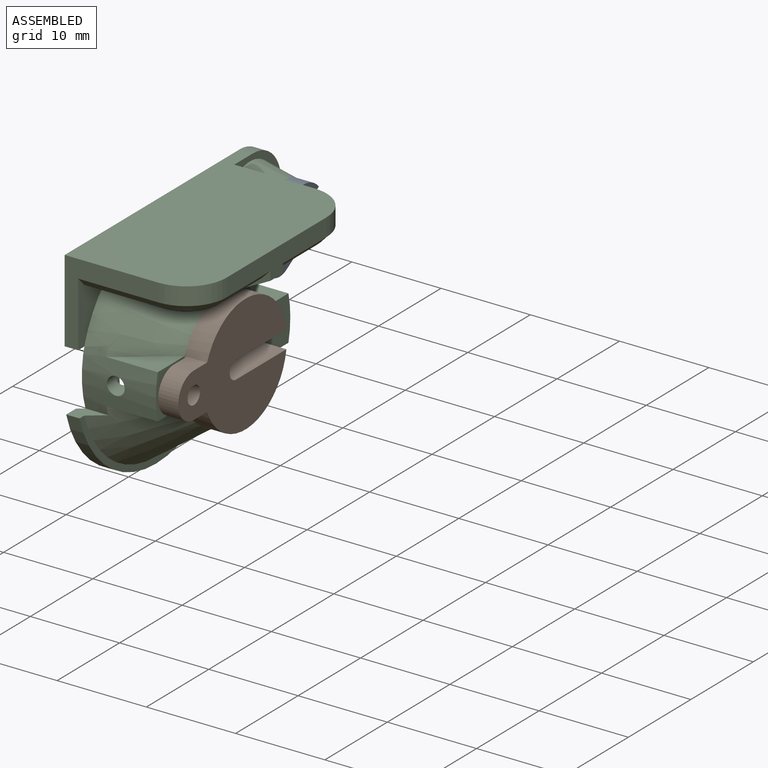
[diagram: assembled view]
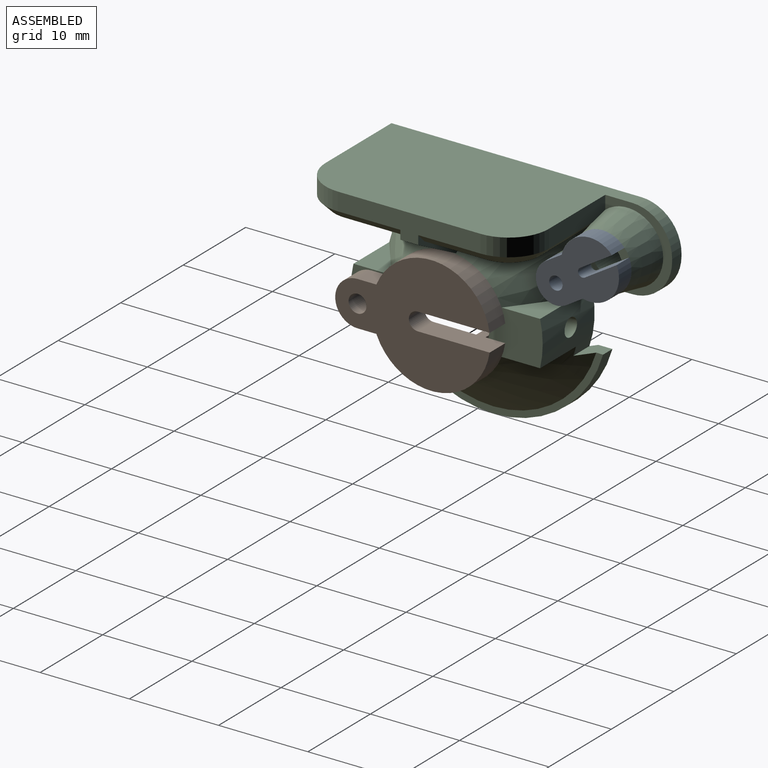
[diagram: assembled view, second angle]
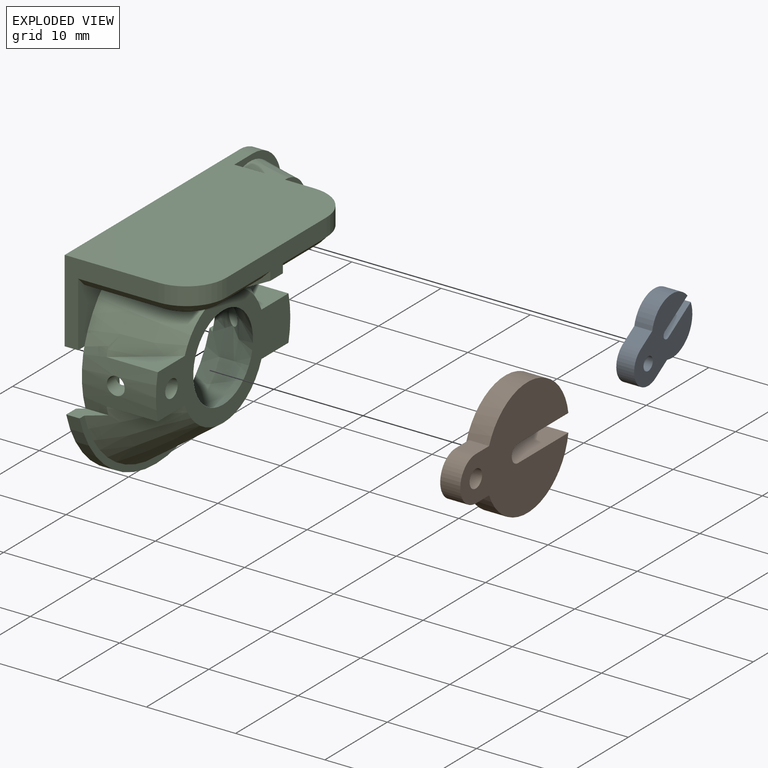
[diagram: exploded view]
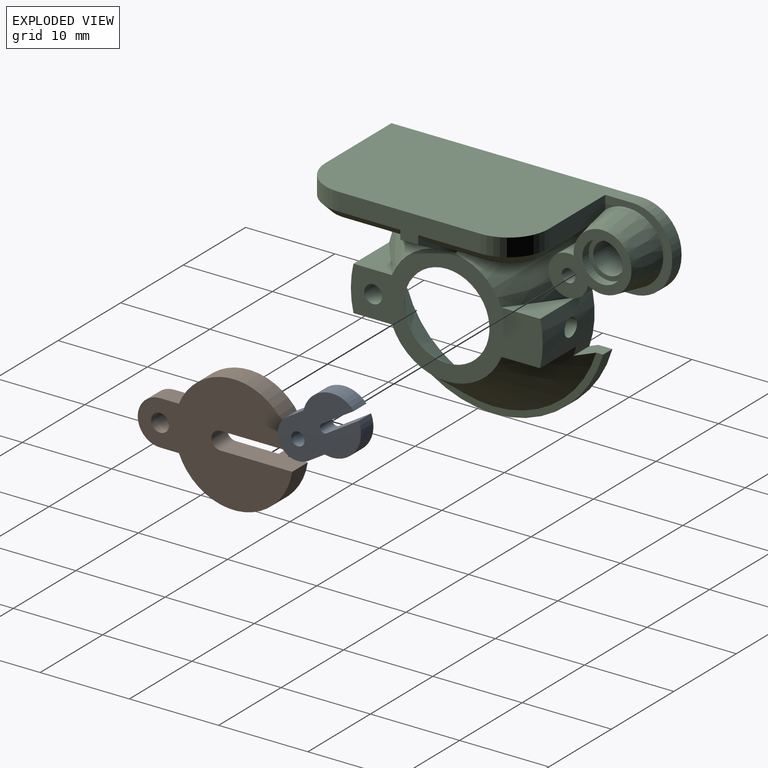
[diagram: exploded view, second angle]
ASSEMBLY  parts=3 mates=2
PART A: 11 faces, bbox 2x9.3x7.9 mm
  f0: cylinder r=2.25mm len=4.16mm, axis (-1,0,0), area 14.1mm2, adj f1,f7,f9,f10
  f1: plane 2x1.83mm, normal (0,0.53,-0.85), area 4.3mm2, adj f0,f2,f9,f10
  f2: cylinder r=3.25mm len=4.52mm, axis (-1,0,0), area 14.4mm2, adj f1,f3,f9,f10
  f3: plane 3.58x2.22mm, normal (0,-0.53,0.85), area 8.4mm2, adj f2,f4,f9,f10
  f4: cylinder r=0.5mm len=2mm, axis (-1,0,0), area 3.1mm2, adj f3,f5,f9,f10
  f5: plane 3.58x2.22mm, normal (0,0.53,-0.85), area 8.4mm2, adj f4,f6,f9,f10
  f6: cylinder r=3.25mm len=5.64mm, axis (-1,0,0), area 14.4mm2, adj f5,f7,f9,f10
  f7: plane 2x1.83mm, normal (0,-0.53,0.85), area 4.3mm2, adj f0,f6,f9,f10
  f8: cylinder r=0.75mm len=2mm, axis (-1,0,0), area 9.4mm2, adj f9,f10
  f9: plane 9.32x7.88mm, normal (1,0,0), area 41.6mm2, adj f0,f1,f2,f3,f4,f5,f6,f7
  f10: plane 9.32x7.88mm, normal (-1,0,0), area 41.6mm2, adj f0,f1,f2,f3,f4,f5,f6,f7
PART B: 15 faces, bbox 3.5x17.3x13.3 mm
  f0: cylinder r=6.63mm len=13.26mm, axis (1,0,0), area 87.6mm2, adj f5,f6,f7,f8,f9,f12,f13
  f1: cylinder r=4.45mm len=8.9mm, axis (1,0,0), area 25.9mm2, adj f2,f5,f12,f13
  f2: plane 8.9x8.79mm, normal (-1,0,0), area 22.8mm2, adj f1,f3,f12,f13
  f3: cylinder r=3.45mm len=6.9mm, axis (1,0,0), area 19.6mm2, adj f2,f4,f12,f13
  f4: plane 6.9x6.75mm, normal (-1,0,0), area 26mm2, adj f3,f12,f13,f14
  f5: plane 13.26x13.18mm, normal (-1,0,0), area 71.4mm2, adj f0,f1,f12,f13
  f6: plane 2.25x2.11mm, normal (0,0,-1), area 4.7mm2, adj f0,f8,f9,f10
  f7: plane 2.25x2.11mm, normal (0,0,1), area 4.7mm2, adj f0,f8,f9,f10
  f8: plane 5x4.61mm, normal (-1,0,0), area 15.6mm2, adj f0,f6,f7,f10,f11
  f9: plane 17.3x13.26mm, normal (1,0,0), area 135.8mm2, adj f0,f6,f7,f10,f11,f12,f13,f14
  f10: cylinder r=2.5mm len=5mm, axis (1,0,0), area 17.7mm2, adj f6,f7,f8,f9
  f11: cylinder r=1mm len=2.25mm, axis (1,0,0), area 14.1mm2, adj f8,f9
  f12: plane 8.05x3.5mm, normal (0,0,-1), area 21.2mm2, adj f0,f1,f2,f3,f4,f5,f9,f14
  f13: plane 8.05x3.5mm, normal (0,0,1), area 21.2mm2, adj f0,f1,f2,f3,f4,f5,f9,f14
  f14: cylinder r=1mm len=2.5mm, axis (1,0,0), area 7.9mm2, adj f4,f9,f12,f13
PART C: 62 faces, bbox 15.1x32.6x25.6 mm
  f0: cone r=6.63mm half-angle=35.7deg, axis (-1,0,0), area 76.6mm2, adj f8,f16,f21,f23,f24,f37,f47,f52
  f1: plane 12.5x10.5mm, normal (0,0,-1), area 117.3mm2, adj f6,f7,f53,f59,f60,f61
  f2: plane 9.32x7.88mm, normal (1,0,0), area 29.3mm2, adj f45,f46,f47,f55
  f3: plane 9.25x8.51mm, normal (1,0,0), area 16.8mm2, adj f4,f24,f34,f36,f38,f43,f44,f47
  f4: cone r=6.63mm half-angle=35.7deg, axis (-1,0,0), area 0mm2, adj f3,f24,f47
  f5: plane 4.5x4.5mm, normal (1,0,0), area 6.3mm2, adj f42,f45
  f6: cone r=6.63mm half-angle=35.7deg, axis (-1,0,0), area 85.5mm2, adj f1,f7,f16,f18,f20,f26,f52,f53
  f7: plane 7.25x5.47mm, normal (1,0,0), area 17.5mm2, adj f1,f6,f26,f35,f59
  f8: plane 4.32x2.45mm, normal (1,0,0), area 5.9mm2, adj f0,f37,f47,f55
  f9: cylinder r=1mm len=1.17mm, axis (1,0,0), area 0.5mm2, adj f13,f29,f30,f31
  f10: cylinder r=1mm len=4.5mm, axis (1,0,0), area 24.3mm2, adj f13,f16,f30,f31,f32
  f11: cylinder r=12.75mm len=24.52mm, axis (-1,0,0), area 49.4mm2, adj f15,f17,f25,f27
  f12: plane 32.5x9.25mm, normal (-1,0,0), area 146.8mm2, adj f13,f24,f26,f34,f35,f36,f40,f43
  f13: cone r=4.78mm half-angle=35.7deg, axis (-1,0,0), area 537.7mm2, adj f9,f10,f12,f15,f16,f20,f21,f24
  f14: cone r=6.63mm half-angle=35.7deg, axis (-1,0,0), area 219.2mm2, adj f16,f17,f19,f20,f21,f22,f25,f27
  f15: plane 24.52x9.25mm, normal (-1,0,0), area 45.9mm2, adj f11,f13,f25,f27
  f16: plane 21.5x13.26mm, normal (1,0,0), area 104.9mm2, adj f0,f6,f10,f13,f14,f18,f19,f20
  f17: plane 24.52x9.25mm, normal (1,0,0), area 23.2mm2, adj f11,f14,f25,f27
  f18: plane 5.73x4.32mm, normal (0,0,1), area 12.3mm2, adj f6,f16,f20
  f19: plane 5.73x4.32mm, normal (0,0,-1), area 12.3mm2, adj f14,f16,f20
  f20: cylinder r=10.75mm len=8.3mm, axis (1,0,0), area 44.1mm2, adj f6,f13,f14,f16,f18,f19,f26,f27
  f21: cylinder r=10.75mm len=8.3mm, axis (1,0,0), area 44.1mm2, adj f0,f13,f14,f16,f22,f23,f24,f25
  f22: plane 5.74x4.32mm, normal (0,0,-1), area 12.3mm2, adj f14,f16,f21
  f23: plane 5.74x4.32mm, normal (0,0,1), area 12.3mm2, adj f0,f16,f21
  f24: plane 5.35x3.28mm, normal (0,0,-1), area 9mm2, adj f0,f3,f4,f12,f13,f21,f43
  f25: plane 3.29x2.12mm, normal (0,0,1), area 4.1mm2, adj f11,f13,f14,f15,f17,f21
  f26: plane 3.29x2.36mm, normal (0,0,-1), area 4.5mm2, adj f6,f7,f12,f13,f20,f35
  f27: plane 3.29x2.12mm, normal (0,0,1), area 4.1mm2, adj f11,f13,f14,f15,f17,f20
  f28: cylinder r=1mm len=1.17mm, axis (1,0,0), area 0.5mm2, adj f13,f29,f30,f32
  f29: plane 1.8x0.56mm, normal (1,0,0), area 0.7mm2, adj f9,f13,f28
  f30: cylinder r=1mm len=2.45mm, axis (0,-1,0), area 11.4mm2, adj f9,f10,f20,f28
  f31: cylinder r=1mm len=1.06mm, axis (0,-1,0), area 0.2mm2, adj f9,f10,f13
  f32: cylinder r=1mm len=1.06mm, axis (0,-1,0), area 0.2mm2, adj f10,f13,f28
  f33: cylinder r=1mm len=3.45mm, axis (0,-1,0), area 17.2mm2, adj f13,f21
  f34: plane 28x15mm, normal (0,0,1), area 370.8mm2, adj f3,f12,f35,f38,f39,f44,f50,f51
  f35: plane 10.5x9.25mm, normal (0,-1,0), area 31.9mm2, adj f7,f12,f26,f34,f50,f59
  f36: plane 1.5x0.25mm, normal (0,1,0), area 0.4mm2, adj f3,f12,f43,f44
  f37: plane 12.5x10.5mm, normal (0,0,-1), area 117.2mm2, adj f0,f8,f54,f55,f56,f57,f58
  f38: plane 9.02x2.02mm, normal (0,1,0), area 17.5mm2, adj f3,f34,f51,f55,f58
  f39: plane 16x3mm, normal (1,0,0), area 34mm2, adj f34,f50,f51,f52,f53,f54,f56,f61
  f40: cylinder r=2.75mm len=5.5mm, axis (-1,0,0), area 17.3mm2, adj f12,f41
  f41: plane 5.5x5.5mm, normal (-1,0,0), area 14.1mm2, adj f40,f42
  f42: cylinder r=1.75mm len=3.5mm, axis (1,0,0), area 38.5mm2, adj f5,f41
  f43: cylinder r=4.5mm len=4.5mm, axis (-1,0,0), area 10.6mm2, adj f3,f12,f24,f36
  f44: cylinder r=4.5mm len=4.5mm, axis (1,0,0), area 10.6mm2, adj f3,f12,f34,f36
  f45: cylinder r=2.25mm len=4.5mm, axis (-1,0,0), area 14.1mm2, adj f2,f5
  f46: cylinder r=0.75mm len=4mm, axis (1,0,0), area 18.7mm2, adj f2,f48,f49
  f47: cylinder r=2.25mm len=4.5mm, axis (1,0,0), area 31.5mm2, adj f0,f2,f3,f4,f8,f55
  f48: plane 1.5x1.48mm, normal (1,0,0), area 1.6mm2, adj f46,f49
  f49: cone r=6.63mm half-angle=35.7deg, axis (-1,0,0), area 0.2mm2, adj f46,f48
  f50: cylinder r=4.5mm len=4.5mm, axis (0,0,1), area 14.1mm2, adj f34,f35,f39,f60
  f51: cylinder r=4.5mm len=4.5mm, axis (0,0,1), area 14.1mm2, adj f34,f38,f39,f57
  f52: plane 6.1x3.19mm, normal (0.46,0,-0.89), area 13.6mm2, adj f0,f6,f39,f53,f54
  f53: plane 10.49x4.23mm, normal (0,-1,0), area 16.9mm2, adj f1,f6,f39,f52,f61
  f54: plane 10.49x4.23mm, normal (0,1,0), area 16.9mm2, adj f0,f37,f39,f52,f56
  f55: cone r=3.25mm half-angle=10.6deg, axis (-1,0,0), area 74.7mm2, adj f2,f3,f8,f37,f38,f47,f58
  f56: plane 7x1mm, normal (0.71,0,-0.71), area 9.9mm2, adj f37,f39,f54,f57
  f57: cone r=3.5mm half-angle=45deg, axis (0,0,1), area 8.9mm2, adj f37,f51,f56,f58
  f58: plane 8.25x1mm, normal (0,0.71,-0.71), area 10.5mm2, adj f37,f38,f55,f57
  f59: plane 9x1mm, normal (0,-0.71,-0.71), area 12.7mm2, adj f1,f7,f35,f60
  f60: cone r=3.5mm half-angle=45deg, axis (0,0,1), area 8.9mm2, adj f1,f50,f59,f61
  f61: plane 7x1mm, normal (0.71,0,-0.71), area 9.9mm2, adj f1,f39,f53,f60
PLACE A rot(axis=(0,0.61,0.79),0deg) t=(-0.27,13.96,1.87)mm
PLACE B t=(-0.27,13.96,1.87)mm
PLACE C t=(-0.27,13.96,1.87)mm
MATE slider B.f10 <-> C.f9  axis (1,0,0) through (-88.77,-55.58,6.68)mm
MATE revolute A.f0 <-> C.f46  axis (-1,0,0) through (-94.77,-36.16,12.43)mm
